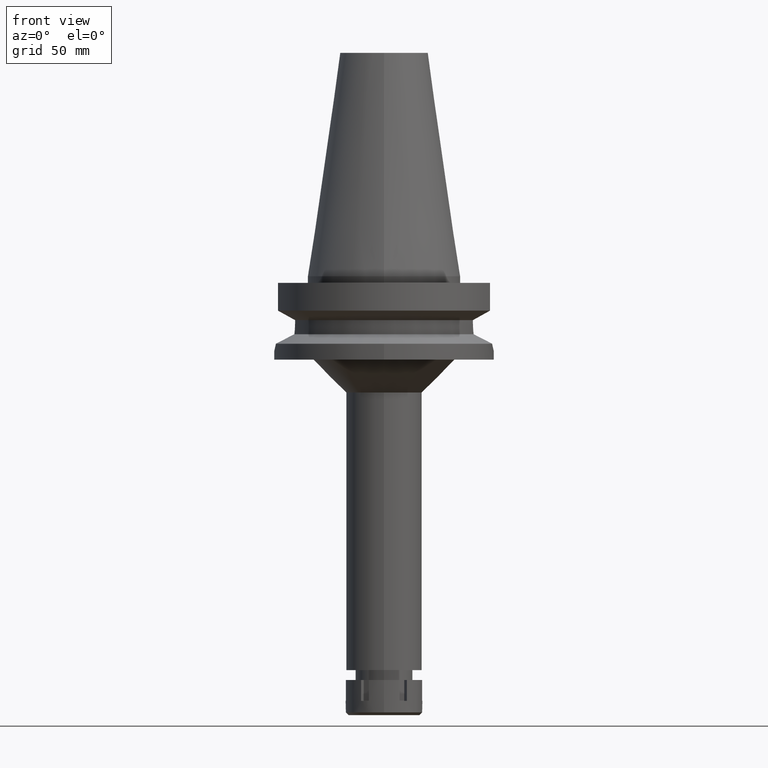
[diagram: clean part render]
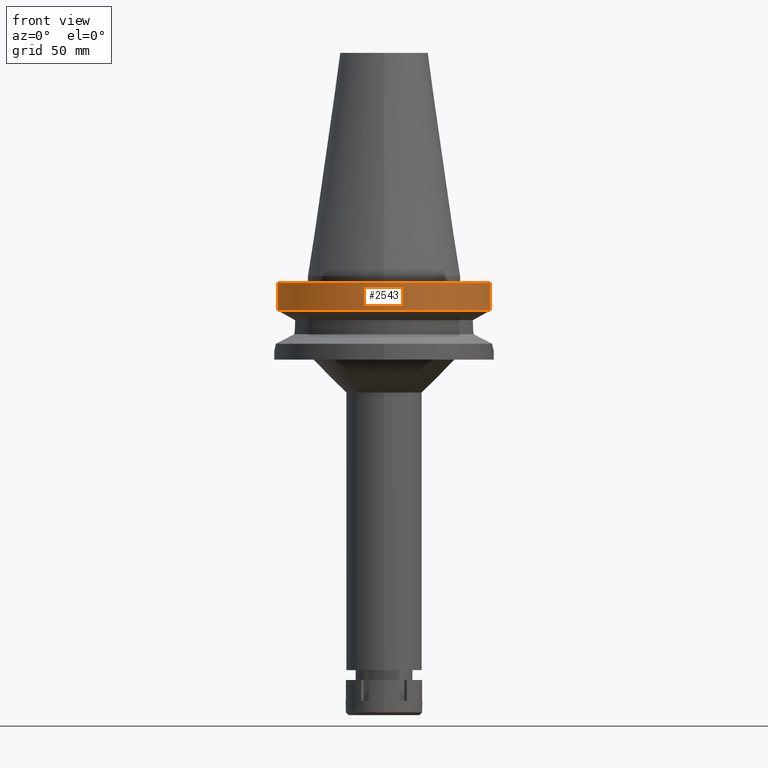
[diagram: same view with one face highlighted and labeled with its STEP entity id]
A machine part, front view. The second image highlights one B-rep face of the part: STEP entity #2543.
In plain terms, the highlighted cylindrical surface (partial cylindrical patch) has radius 50 mm, axis along (0, 0, -1).
Its self-contained STEP definition (entity closure, byte-faithful):
#166 = VECTOR ( 'NONE', #2812, 999.9999999999998863 ) ;
#339 = AXIS2_PLACEMENT_3D ( 'NONE', #389, #2985, #1516 ) ;
#342 = VECTOR ( 'NONE', #3634, 1000.000000000000114 ) ;
#347 = DIRECTION ( 'NONE',  ( 0.0000000000000000000, -1.000000000000000000, 0.0000000000000000000 ) ) ;
#389 = CARTESIAN_POINT ( 'NONE',  ( 0.0000000000000000000, 2.651237855473999832E-14, 116.4899999999999949 ) ) ;
#430 = CARTESIAN_POINT ( 'NONE',  ( 48.32057015392000210, -12.84999999999999964, -3.000000000000000000 ) ) ;
#453 = CARTESIAN_POINT ( 'NONE',  ( -48.32056912814000071, -12.85000385727999905, -15.66265768250999990 ) ) ;
#518 = VERTEX_POINT ( 'NONE', #453 ) ;
#849 = EDGE_LOOP ( 'NONE', ( #1930, #1145, #1098, #1367 ) ) ;
#883 = CARTESIAN_POINT ( 'NONE',  ( 48.32057015392000210, -12.84999999999999964, -3.000000000000000000 ) ) ;
#1046 = CIRCLE ( 'NONE', #1812, 50.00000000000000000 ) ;
#1098 = ORIENTED_EDGE ( 'NONE', *, *, #2876, .F. ) ;
#1145 = ORIENTED_EDGE ( 'NONE', *, *, #2177, .T. ) ;
#1205 = VERTEX_POINT ( 'NONE', #430 ) ;
#1232 = DIRECTION ( 'NONE',  ( 0.0000000000000000000, 0.0000000000000000000, -1.000000000000000000 ) ) ;
#1367 = ORIENTED_EDGE ( 'NONE', *, *, #2986, .T. ) ;
#1497 = FACE_OUTER_BOUND ( 'NONE', #849, .T. ) ;
#1516 = DIRECTION ( 'NONE',  ( 0.0000000000000000000, -1.000000000000000000, 0.0000000000000000000 ) ) ;
#1530 = AXIS2_PLACEMENT_3D ( 'NONE', #2648, #1232, #347 ) ;
#1541 = DIRECTION ( 'NONE',  ( 0.0000000000000000000, -1.000000000000000000, 0.0000000000000000000 ) ) ;
#1631 = CARTESIAN_POINT ( 'NONE',  ( -48.32056912814000071, -12.85000385727999905, -15.66265768250999990 ) ) ;
#1672 = LINE ( 'NONE', #883, #166 ) ;
#1812 = AXIS2_PLACEMENT_3D ( 'NONE', #3286, #2966, #1541 ) ;
#1930 = ORIENTED_EDGE ( 'NONE', *, *, #2573, .F. ) ;
#2069 = CYLINDRICAL_SURFACE ( 'NONE', #339, 50.00000000000000000 ) ;
#2177 = EDGE_CURVE ( 'NONE', #518, #2528, #1046, .T. ) ;
#2255 = CARTESIAN_POINT ( 'NONE',  ( -48.32057015392000210, -12.84999999999999964, -3.000000000000000000 ) ) ;
#2528 = VERTEX_POINT ( 'NONE', #3204 ) ;
#2543 = ADVANCED_FACE ( 'NONE', ( #1497 ), #2069, .T. ) ;
#2573 = EDGE_CURVE ( 'NONE', #518, #2855, #3067, .T. ) ;
#2648 = CARTESIAN_POINT ( 'NONE',  ( 0.0000000000000000000, 2.651237855473999832E-14, -3.000000000000000000 ) ) ;
#2812 = DIRECTION ( 'NONE',  ( -8.103519278860602309E-08, -3.047209459813850567E-07, -0.9999999999999503730 ) ) ;
#2855 = VERTEX_POINT ( 'NONE', #2255 ) ;
#2876 = EDGE_CURVE ( 'NONE', #1205, #2528, #1672, .T. ) ;
#2966 = DIRECTION ( 'NONE',  ( 0.0000000000000000000, 0.0000000000000000000, 1.000000000000000000 ) ) ;
#2985 = DIRECTION ( 'NONE',  ( 0.0000000000000000000, 0.0000000000000000000, -1.000000000000000000 ) ) ;
#2986 = EDGE_CURVE ( 'NONE', #1205, #2855, #3152, .T. ) ;
#3067 = LINE ( 'NONE', #1631, #342 ) ;
#3152 = CIRCLE ( 'NONE', #1530, 50.00000000000000000 ) ;
#3204 = CARTESIAN_POINT ( 'NONE',  ( 48.32057015392000210, -12.84999999999999964, -15.66269223573000069 ) ) ;
#3286 = CARTESIAN_POINT ( 'NONE',  ( 0.0000000000000000000, 1.006319759053999930E-14, -15.66269223573000069 ) ) ;
#3634 = DIRECTION ( 'NONE',  ( -8.100800697240604101E-08, 3.046187202870850882E-07, 0.9999999999999503730 ) ) ;